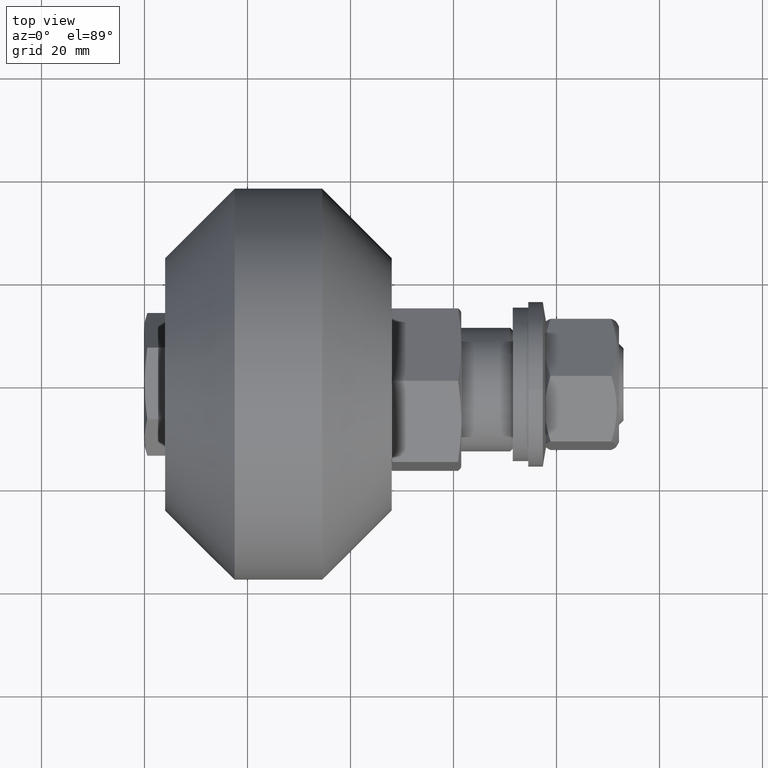
[diagram: clean part render]
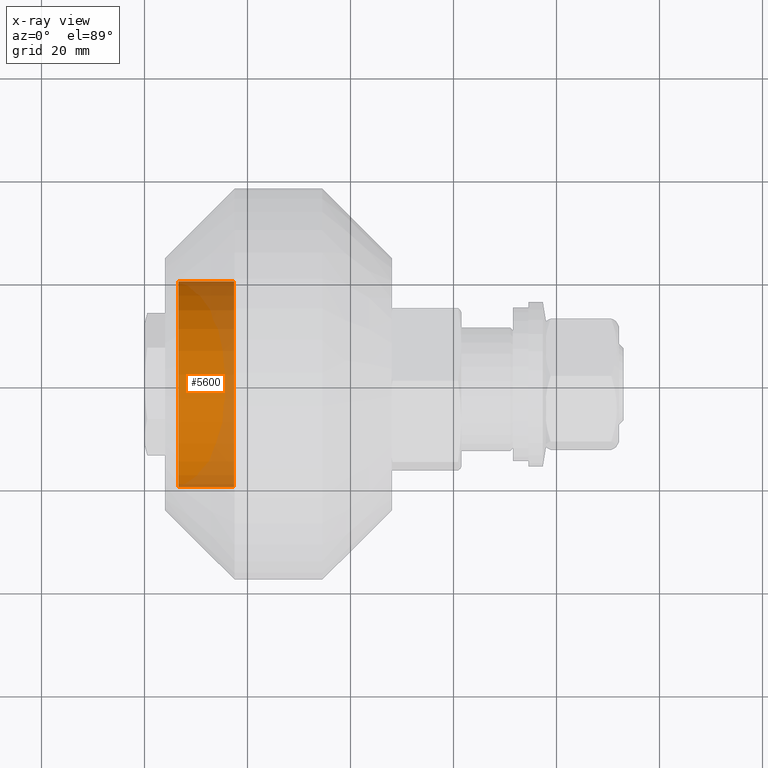
[diagram: x-ray — body ghosted, one internal face saturated and labeled with its STEP entity id]
A machine part, top view, then the same camera in x-ray: the body is ghosted and one INTERNAL B-rep face — a face not visible from any outside direction — is saturated and labeled: STEP entity #5600.
In plain terms, the highlighted cylindrical surface (bore or boss wall) has radius 20 mm, axis along (-1, 0, -0).
Its self-contained STEP definition (entity closure, byte-faithful):
#593=CYLINDRICAL_SURFACE('',#6384,20.);
#868=FACE_OUTER_BOUND('',#1185,.T.);
#1185=EDGE_LOOP('',(#5081,#5082,#5083,#5084,#5085,#5086));
#1543=LINE('',#9888,#1861);
#1861=VECTOR('',#7878,20.);
#2130=CIRCLE('',#6380,20.);
#2131=CIRCLE('',#6381,20.);
#2134=CIRCLE('',#6385,20.);
#2135=CIRCLE('',#6386,20.);
#2669=VERTEX_POINT('',#9877);
#2670=VERTEX_POINT('',#9878);
#2672=VERTEX_POINT('',#9885);
#2673=VERTEX_POINT('',#9886);
#3490=EDGE_CURVE('',#2669,#2670,#2130,.T.);
#3491=EDGE_CURVE('',#2670,#2669,#2131,.T.);
#3494=EDGE_CURVE('',#2672,#2673,#2134,.T.);
#3495=EDGE_CURVE('',#2672,#2670,#1543,.T.);
#3496=EDGE_CURVE('',#2673,#2672,#2135,.T.);
#5081=ORIENTED_EDGE('',*,*,#3494,.F.);
#5082=ORIENTED_EDGE('',*,*,#3495,.T.);
#5083=ORIENTED_EDGE('',*,*,#3490,.F.);
#5084=ORIENTED_EDGE('',*,*,#3491,.F.);
#5085=ORIENTED_EDGE('',*,*,#3495,.F.);
#5086=ORIENTED_EDGE('',*,*,#3496,.F.);
#5600=ADVANCED_FACE('',(#868),#593,.T.);
#6380=AXIS2_PLACEMENT_3D('',#9879,#7866,#7867);
#6381=AXIS2_PLACEMENT_3D('',#9880,#7868,#7869);
#6384=AXIS2_PLACEMENT_3D('',#9884,#7874,#7875);
#6385=AXIS2_PLACEMENT_3D('',#9887,#7876,#7877);
#6386=AXIS2_PLACEMENT_3D('',#9889,#7879,#7880);
#7866=DIRECTION('center_axis',(0.,0.,-1.));
#7867=DIRECTION('ref_axis',(-1.22464679914735E-16,-1.,0.));
#7868=DIRECTION('center_axis',(0.,0.,-1.));
#7869=DIRECTION('ref_axis',(-1.22464679914735E-16,-1.,0.));
#7874=DIRECTION('center_axis',(0.,0.,1.));
#7875=DIRECTION('ref_axis',(0.,1.,0.));
#7876=DIRECTION('center_axis',(0.,0.,1.));
#7877=DIRECTION('ref_axis',(-1.22464679914735E-16,-1.,0.));
#7878=DIRECTION('',(0.,0.,-1.));
#7879=DIRECTION('center_axis',(0.,0.,1.));
#7880=DIRECTION('ref_axis',(-1.22464679914735E-16,-1.,0.));
#9877=CARTESIAN_POINT('',(-20.,-2.44929359829471E-15,0.599999999999999));
#9878=CARTESIAN_POINT('',(2.44929359829471E-15,-20.,0.599999999999999));
#9879=CARTESIAN_POINT('Origin',(0.,0.,0.599999999999999));
#9880=CARTESIAN_POINT('Origin',(0.,0.,0.599999999999999));
#9884=CARTESIAN_POINT('Origin',(0.,0.,6.));
#9885=CARTESIAN_POINT('',(2.44929359829471E-15,-20.,11.4));
#9886=CARTESIAN_POINT('',(-20.,-2.44929359829471E-15,11.4));
#9887=CARTESIAN_POINT('Origin',(0.,0.,11.4));
#9888=CARTESIAN_POINT('',(2.44929359829471E-15,-20.,6.));
#9889=CARTESIAN_POINT('Origin',(0.,0.,11.4));